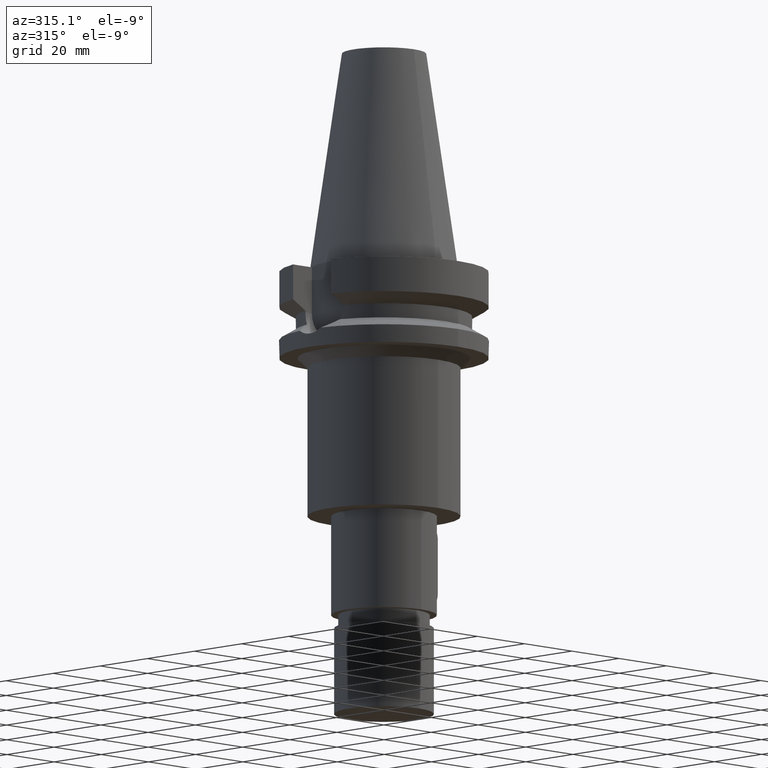
[diagram: clean part render]
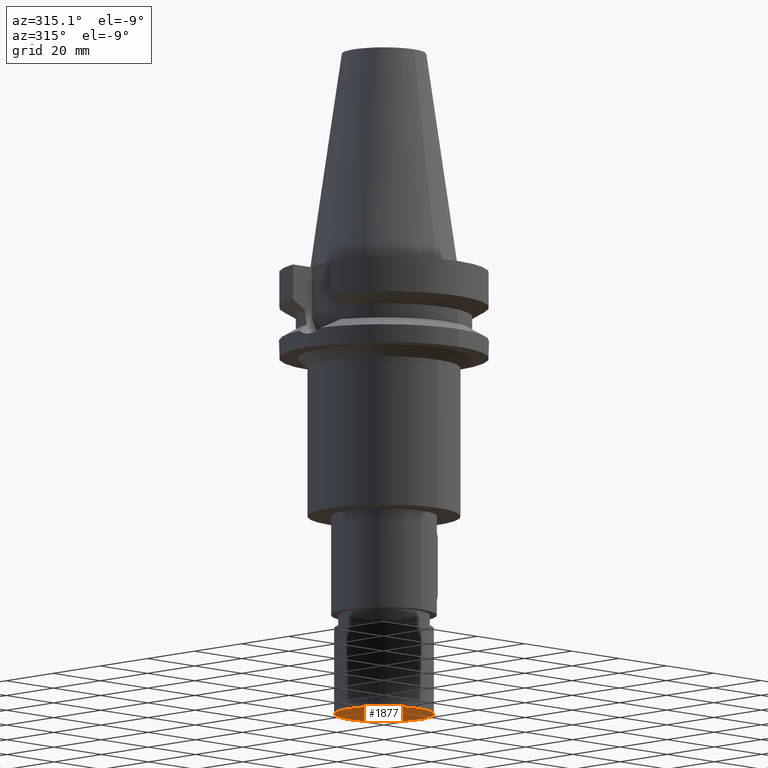
[diagram: same view with one face highlighted and labeled with its STEP entity id]
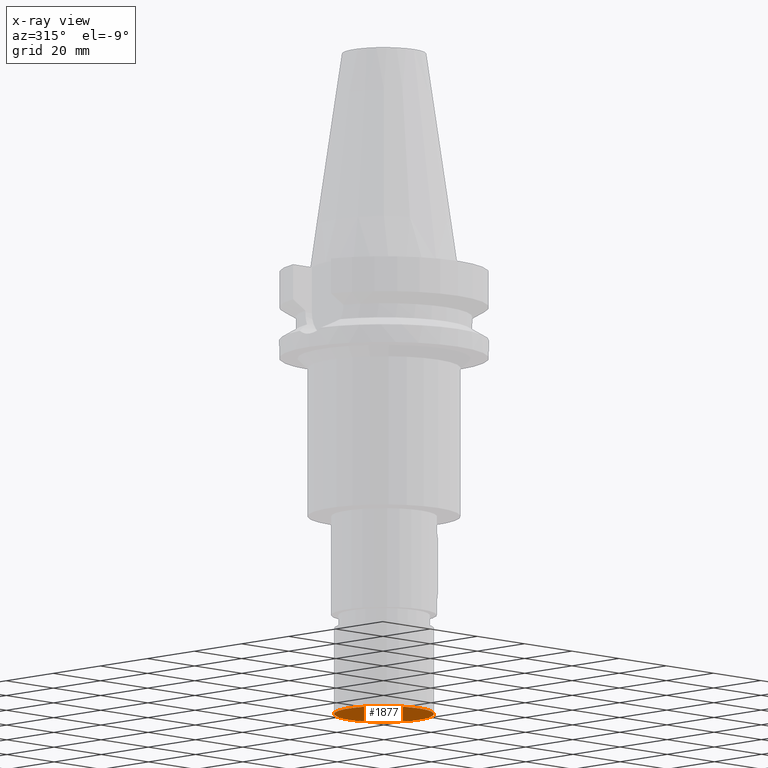
[diagram: x-ray of the same camera — body ghosted, the highlighted face saturated]
A machine part, auxiliary view. The second image highlights one B-rep face of the part: STEP entity #1877.
The next image is the same camera in x-ray: the body ghosted, the highlighted face saturated — about 0% of this face is hidden behind the body in this view.
In plain terms, the highlighted planar face has unit normal (0, 0, -1).
Its self-contained STEP definition (entity closure, byte-faithful):
#846=CARTESIAN_POINT('',(0.E0,2.148275415064E-14,-1.35E2));
#847=DIRECTION('',(0.E0,0.E0,1.E0));
#848=DIRECTION('',(0.E0,1.E0,0.E0));
#849=AXIS2_PLACEMENT_3D('',#846,#847,#848);
#854=CARTESIAN_POINT('',(0.E0,2.148275415064E-14,-1.35E2));
#855=DIRECTION('',(0.E0,0.E0,1.E0));
#856=DIRECTION('',(0.E0,-1.E0,0.E0));
#857=AXIS2_PLACEMENT_3D('',#854,#855,#856);
#1214=CARTESIAN_POINT('',(0.E0,1.5E1,-1.35E2));
#1215=VERTEX_POINT('',#1214);
#1216=CARTESIAN_POINT('',(0.E0,-1.5E1,-1.35E2));
#1217=VERTEX_POINT('',#1216);
#1868=CARTESIAN_POINT('',(0.E0,0.E0,-1.35E2));
#1869=DIRECTION('',(0.E0,0.E0,-1.E0));
#1870=DIRECTION('',(0.E0,-1.E0,0.E0));
#1871=AXIS2_PLACEMENT_3D('',#1868,#1869,#1870);
#1872=PLANE('',#1871);
#1873=ORIENTED_EDGE('',*,*,#1863,.T.);
#1874=ORIENTED_EDGE('',*,*,#1847,.T.);
#1875=EDGE_LOOP('',(#1873,#1874));
#1876=FACE_OUTER_BOUND('',#1875,.F.);
#850=CIRCLE('',#849,1.5E1);
#858=CIRCLE('',#857,1.5E1);
#1847=EDGE_CURVE('',#1217,#1215,#858,.T.);
#1863=EDGE_CURVE('',#1215,#1217,#850,.T.);
#1877=ADVANCED_FACE('',(#1876),#1872,.T.);